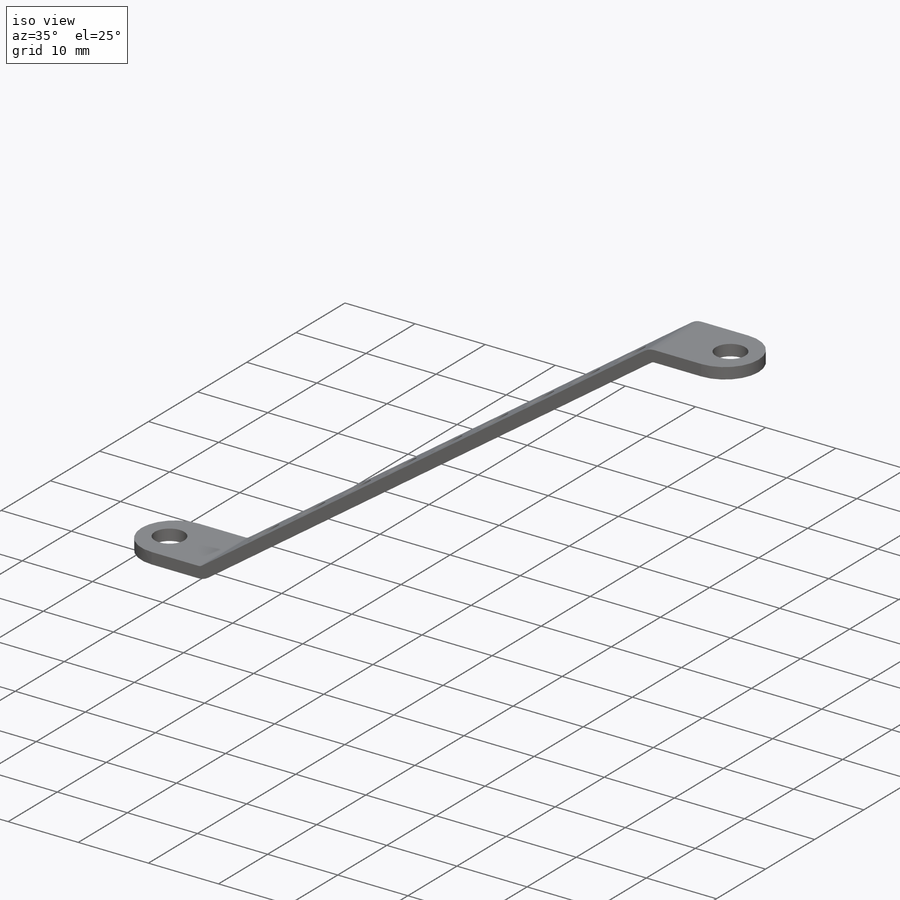
[diagram: iso view]
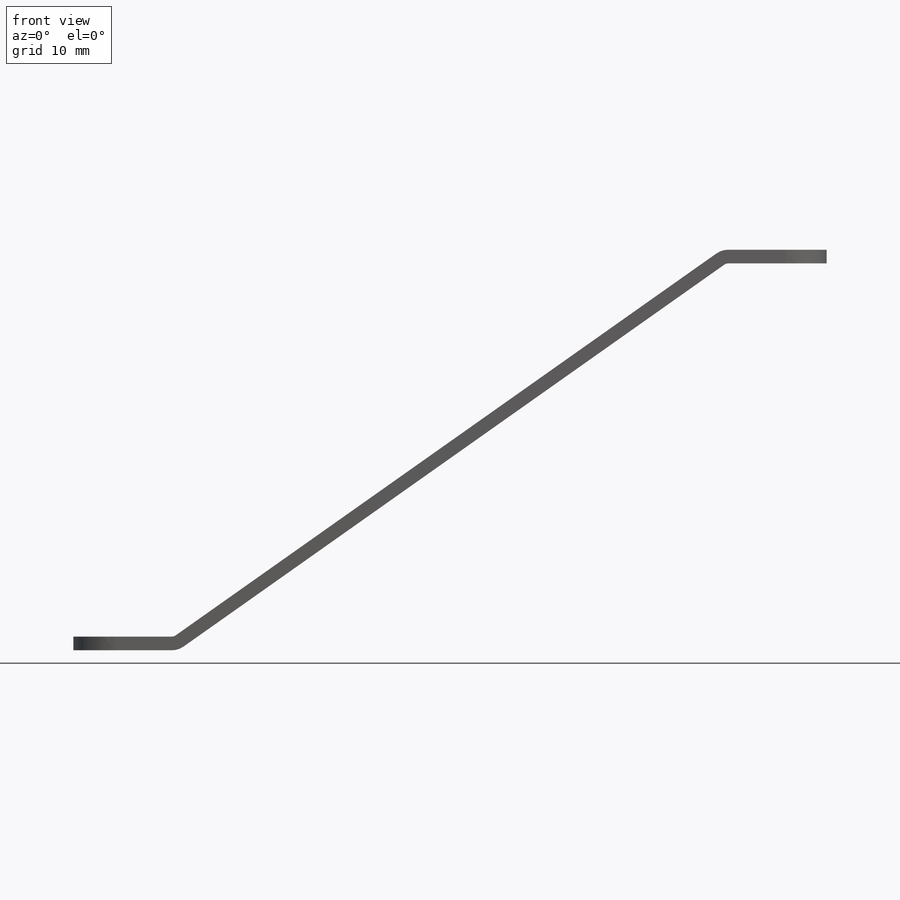
[diagram: front view]
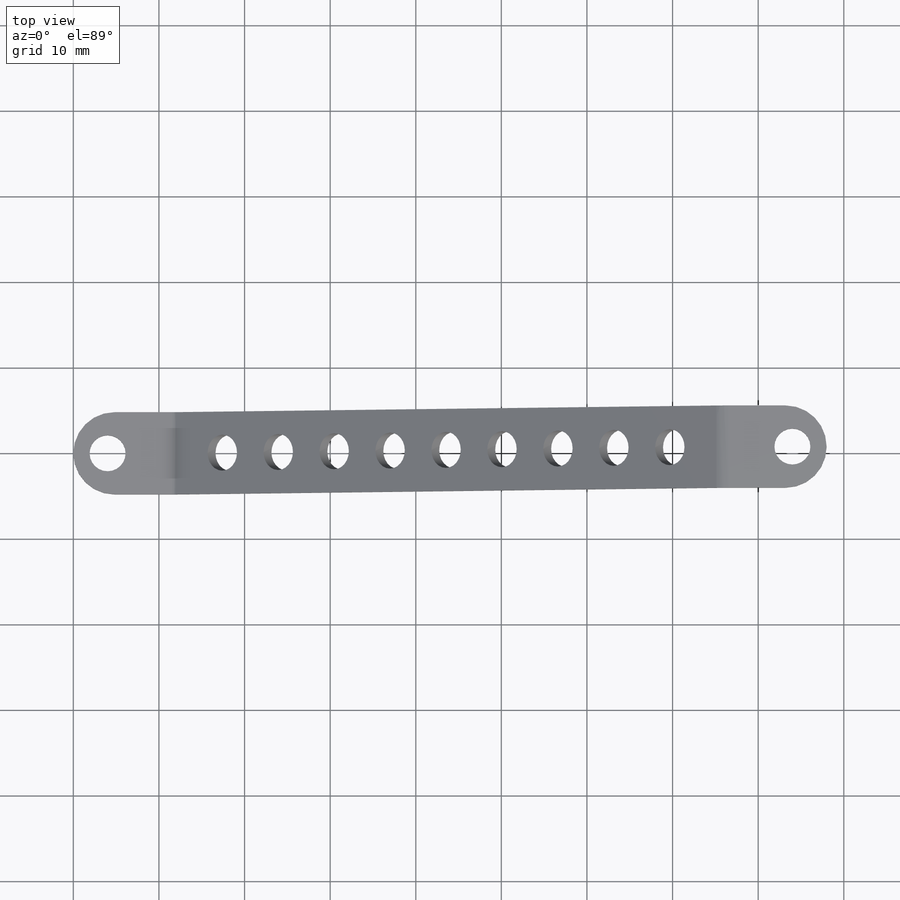
[diagram: top view]
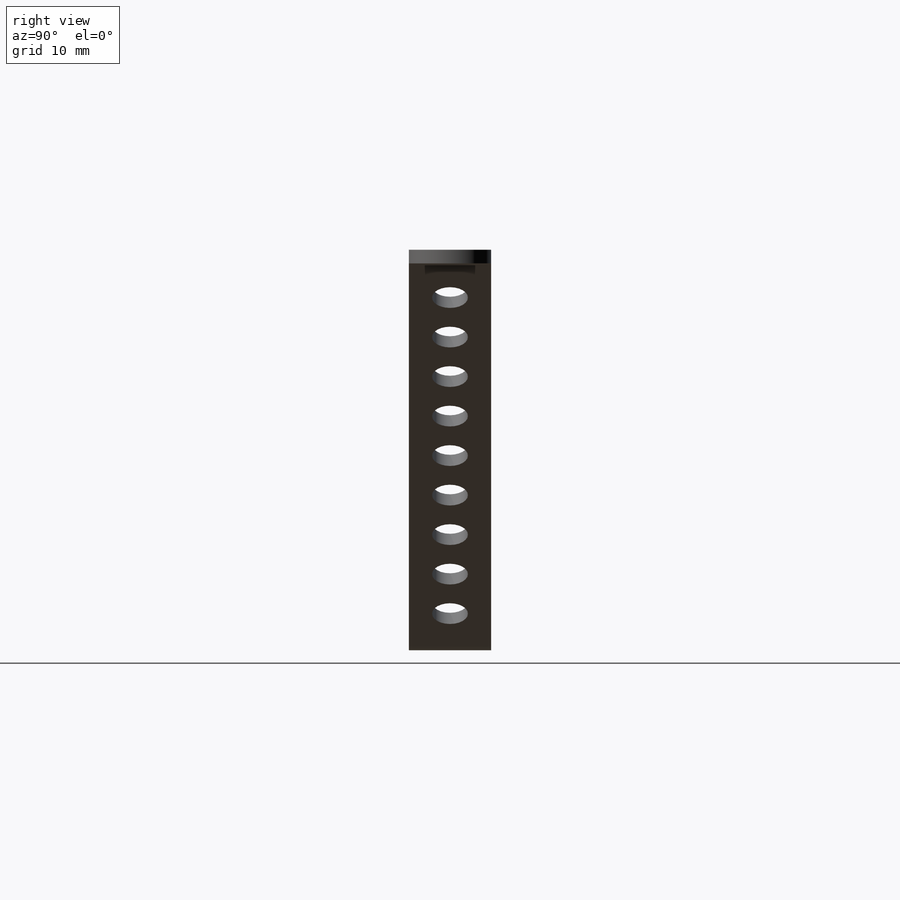
[diagram: right view]
SOLIDWORKS PART (.sldprt)
format: sldprt  version: not decoded by parser v0  size: 231,936 bytes
history: native  units: mm
features: sketch x4, cut_extrude x3, pattern_linear x2, material x1, fillet x1, mirror x1 (+12 scaffold rows collapsed)
feature tree (24):
  scaffold x12  (default folders/planes/origin — collapsed)
  material  "1060 Alloy"
  sketch  "Sketch1"  dims[c1.D5=1.6mm c1.D1=12.0mm c1.D2=12.0mm c1.D3=45.2mm c1.D4=88.0mm c2.D1=4.8mm c2.D5=1.6mm c2.D6=1.0mm c2.D7=5.0mm]
  sketch  "Sketch2"  dims[D1=4.2mm D2=4.0mm]
  cut_extrude  "Cut-Extrude1"  [1 undecoded]
  sketch  "Sketch3"  dims[D2=4.2mm D1=4.0mm]
  cut_extrude  "Cut-Extrude2"  [1 undecoded]
  fillet  "Fillet1"  Radius=4.8mm
  sketch  "Sketch4"  dims[D1=4.2mm]
  cut_extrude  "Cut-Extrude3"  [1 undecoded]
  pattern_linear  "LPattern1"  Count1=5 Count2=1 Spacing1=8mm Spacing2=10mm
  pattern_linear  "LPattern2"  Count1=5 Count2=1 Spacing1=8mm Spacing2=10mm
  mirror  "Mirror1"
decode coverage: 7 of 11 modeling features carry decoded parameters
note: 3 parameter values undecoded
summary: no parameter record found for 3 features
note: suppression state not decoded; provenance and decode notes live in map.json
